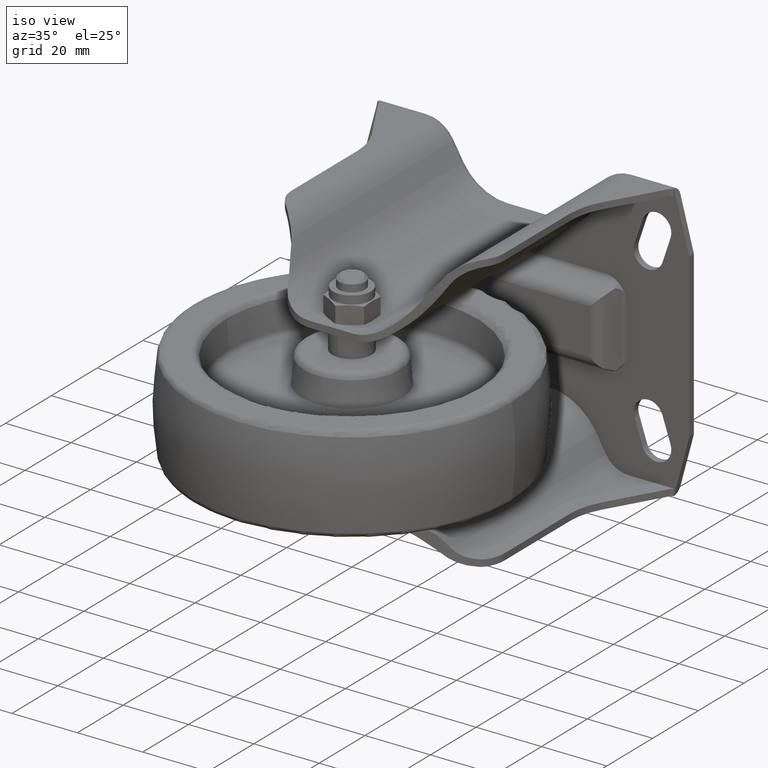
[diagram: clean part render]
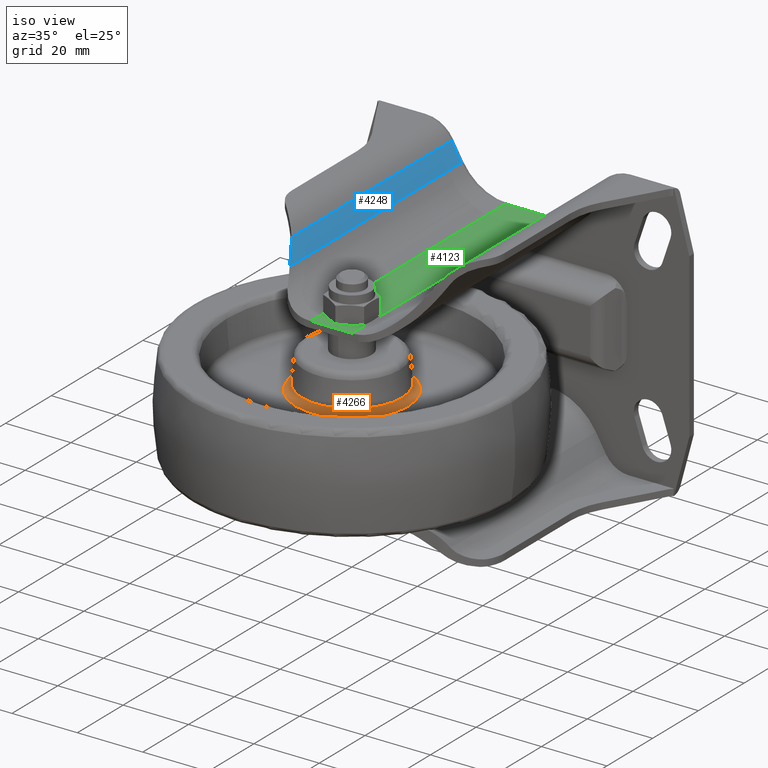
[diagram: same view with three faces highlighted in distinct colors, each labeled with its STEP entity id]
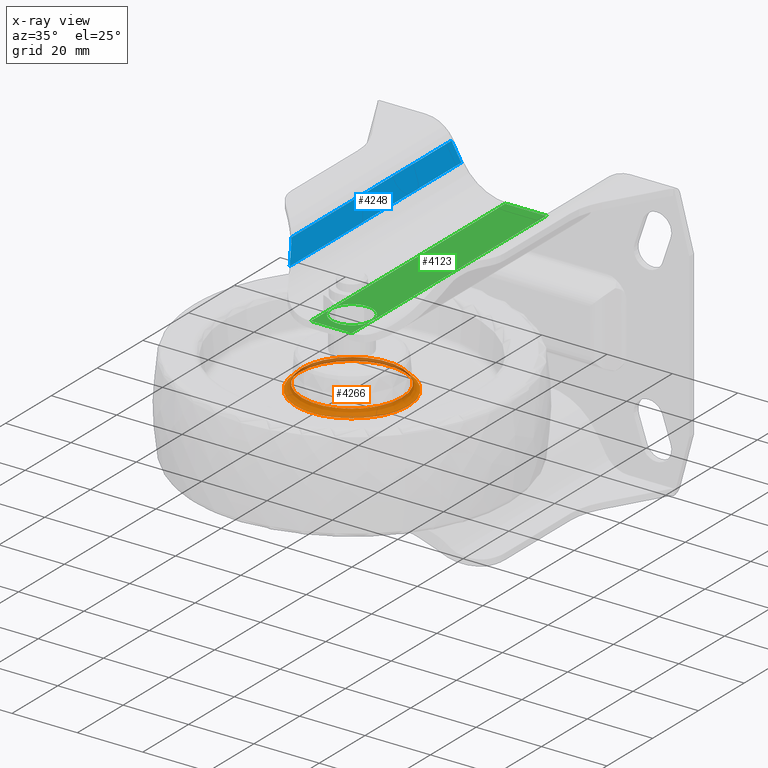
[diagram: x-ray of the same camera — body ghosted, the three highlighted faces saturated]
A machine part, iso view with three faces highlighted in distinct colors.
The next image is the same camera in x-ray (body ghosted, the three faces saturated) — at least one of them is partly hidden behind the body in this view.
Their STEP definitions:

[orange] entity #4266 — the highlighted toroidal blend (fillet) surface has major radius 17.3112 mm and minor (blend) radius 2 mm.
#65=TOROIDAL_SURFACE('',#4763,17.3111789336489,1.99999999999999);
#538=FACE_OUTER_BOUND('',#797,.T.);
#797=EDGE_LOOP('',(#3679,#3680,#3681,#3682,#3683,#3684));
#1541=CIRCLE('',#4761,17.206507021163);
#1542=CIRCLE('',#4762,17.206507021163);
#1543=CIRCLE('',#4764,1.99999999999999);
#1544=CIRCLE('',#4765,15.3187895374654);
#1545=CIRCLE('',#4766,15.3187895374654);
#1917=VERTEX_POINT('',#7499);
#1918=VERTEX_POINT('',#7501);
#1919=VERTEX_POINT('',#7505);
#1920=VERTEX_POINT('',#7507);
#2507=EDGE_CURVE('',#1917,#1918,#1541,.T.);
#2508=EDGE_CURVE('',#1918,#1917,#1542,.T.);
#2509=EDGE_CURVE('',#1918,#1919,#1543,.T.);
#2510=EDGE_CURVE('',#1919,#1920,#1544,.T.);
#2511=EDGE_CURVE('',#1920,#1919,#1545,.T.);
#3679=ORIENTED_EDGE('',*,*,#2507,.F.);
#3680=ORIENTED_EDGE('',*,*,#2508,.F.);
#3681=ORIENTED_EDGE('',*,*,#2509,.T.);
#3682=ORIENTED_EDGE('',*,*,#2510,.T.);
#3683=ORIENTED_EDGE('',*,*,#2511,.T.);
#3684=ORIENTED_EDGE('',*,*,#2509,.F.);
#4266=ADVANCED_FACE('',(#538),#65,.F.);
#4761=AXIS2_PLACEMENT_3D('',#7502,#5977,#5978);
#4762=AXIS2_PLACEMENT_3D('',#7503,#5979,#5980);
#4763=AXIS2_PLACEMENT_3D('',#7504,#5981,#5982);
#4764=AXIS2_PLACEMENT_3D('',#7506,#5983,#5984);
#4765=AXIS2_PLACEMENT_3D('',#7508,#5985,#5986);
#4766=AXIS2_PLACEMENT_3D('',#7509,#5987,#5988);
#5977=DIRECTION('center_axis',(0.,0.,-1.));
#5978=DIRECTION('ref_axis',(1.,0.,0.));
#5979=DIRECTION('center_axis',(0.,0.,-1.));
#5980=DIRECTION('ref_axis',(1.,0.,0.));
#5981=DIRECTION('center_axis',(0.,0.,-1.));
#5982=DIRECTION('ref_axis',(-1.,0.,0.));
#5983=DIRECTION('center_axis',(1.22464679914735E-16,1.,0.));
#5984=DIRECTION('ref_axis',(1.,-1.22464679914735E-16,0.));
#5985=DIRECTION('center_axis',(0.,0.,-1.));
#5986=DIRECTION('ref_axis',(1.,0.,0.));
#5987=DIRECTION('center_axis',(0.,0.,-1.));
#5988=DIRECTION('ref_axis',(1.,0.,0.));
#7499=CARTESIAN_POINT('',(-17.206507021163,-2.10711978252056E-15,3.81824517780279));
#7501=CARTESIAN_POINT('',(17.206507021163,-2.10718937479737E-15,3.81824517780279));
#7502=CARTESIAN_POINT('Origin',(0.,0.,3.81824517780279));
#7503=CARTESIAN_POINT('Origin',(0.,0.,3.81824517780279));
#7504=CARTESIAN_POINT('Origin',(0.,0.,5.81550424731193));
#7505=CARTESIAN_POINT('',(15.3187895374654,-1.8760106573869E-15,5.64119276181662));
#7506=CARTESIAN_POINT('Origin',(17.3111789336489,-2.12000798705602E-15,
5.81550424731193));
#7507=CARTESIAN_POINT('',(-15.3187895374654,1.87594870004479E-15,5.64119276181662));
#7508=CARTESIAN_POINT('Origin',(0.,0.,5.64119276181662));
#7509=CARTESIAN_POINT('Origin',(0.,0.,5.64119276181662));

[blue] entity #4248 — the highlighted planar face has unit normal (0.866, 0, 0.5).
#100=ELLIPSE('',#4614,19.9999999999995,9.99999999999976);
#300=PLANE('',#4716);
#520=FACE_OUTER_BOUND('',#779,.T.);
#779=EDGE_LOOP('',(#3581,#3582,#3583,#3584,#3585));
#860=LINE('',#6532,#1126);
#956=LINE('',#7072,#1222);
#1067=LINE('',#7425,#1333);
#1068=LINE('',#7427,#1334);
#1126=VECTOR('',#5149,10.);
#1222=VECTOR('',#5547,6.92465327496404);
#1333=VECTOR('',#5878,71.8951631842363);
#1334=VECTOR('',#5881,77.0849364905389);
#1674=VERTEX_POINT('',#6518);
#1678=VERTEX_POINT('',#6530);
#1804=VERTEX_POINT('',#7069);
#1805=VERTEX_POINT('',#7071);
#1816=VERTEX_POINT('',#7097);
#2112=EDGE_CURVE('',#1678,#1674,#860,.T.);
#2310=EDGE_CURVE('',#1805,#1804,#956,.T.);
#2322=EDGE_CURVE('',#1816,#1805,#100,.T.);
#2471=EDGE_CURVE('',#1678,#1816,#1067,.T.);
#2472=EDGE_CURVE('',#1674,#1804,#1068,.T.);
#3581=ORIENTED_EDGE('',*,*,#2112,.F.);
#3582=ORIENTED_EDGE('',*,*,#2471,.T.);
#3583=ORIENTED_EDGE('',*,*,#2322,.T.);
#3584=ORIENTED_EDGE('',*,*,#2310,.T.);
#3585=ORIENTED_EDGE('',*,*,#2472,.F.);
#4248=ADVANCED_FACE('',(#520),#300,.T.);
#4614=AXIS2_PLACEMENT_3D('',#7098,#5570,#5571);
#4716=AXIS2_PLACEMENT_3D('',#7426,#5879,#5880);
#5149=DIRECTION('',(0.5,0.,-0.866025403784439));
#5547=DIRECTION('',(0.377964473009228,-0.654653670707975,-0.654653670707979));
#5570=DIRECTION('center_axis',(-0.866025403784439,0.,-0.5));
#5571=DIRECTION('ref_axis',(0.5,0.,-0.866025403784439));
#5878=DIRECTION('',(0.,-1.,0.));
#5879=DIRECTION('center_axis',(0.866025403784439,0.,0.5));
#5880=DIRECTION('ref_axis',(0.5,0.,-0.866025403784439));
#5881=DIRECTION('',(0.,-1.,0.));
#6518=CARTESIAN_POINT('',(-19.7244645862196,76.,32.25));
#6530=CARTESIAN_POINT('',(-22.7555534994651,76.,37.5));
#6532=CARTESIAN_POINT('',(-11.7921211515529,76.,18.5107781480718));
#7069=CARTESIAN_POINT('',(-19.7244645862196,0.915063509461078,32.25));
#7071=CARTESIAN_POINT('',(-22.341737512063,5.44831319429635,36.7832496848352));
#7072=CARTESIAN_POINT('',(-22.341737512063,5.44831319429634,36.7832496848352));
#7097=CARTESIAN_POINT('',(-22.7555534994651,6.10483681576369,37.5));
#7098=CARTESIAN_POINT('Origin',(-31.0019915499072,0.448313194296499,51.7832496848349));
#7425=CARTESIAN_POINT('',(-22.7555534994651,78.,37.5));
#7426=CARTESIAN_POINT('Origin',(-22.7555534994651,78.,37.5));
#7427=CARTESIAN_POINT('',(-19.7244645862196,78.,32.25));

[green] entity #4123 — the highlighted planar face has unit normal (0, 0, 1).
#200=FACE_BOUND('',#642,.T.);
#246=PLANE('',#4481);
#395=FACE_OUTER_BOUND('',#641,.T.);
#641=EDGE_LOOP('',(#2887,#2888,#2889,#2890));
#642=EDGE_LOOP('',(#2891,#2892,#2893,#2894,#2895,#2896));
#858=LINE('',#6512,#1124);
#878=LINE('',#6606,#1144);
#879=LINE('',#6621,#1145);
#880=LINE('',#6622,#1146);
#1124=VECTOR('',#5125,10.);
#1144=VECTOR('',#5215,87.);
#1145=VECTOR('',#5222,87.);
#1146=VECTOR('',#5223,12.6021416551216);
#1363=CIRCLE('',#4332,6.2583333333335);
#1364=CIRCLE('',#4334,6.2583333333335);
#1373=CIRCLE('',#4359,6.2583333333335);
#1374=CIRCLE('',#4361,6.2583333333335);
#1375=CIRCLE('',#4363,6.2583333333335);
#1376=CIRCLE('',#4365,6.2583333333335);
#1586=VERTEX_POINT('',#6122);
#1587=VERTEX_POINT('',#6126);
#1588=VERTEX_POINT('',#6132);
#1589=VERTEX_POINT('',#6133);
#1602=VERTEX_POINT('',#6180);
#1609=VERTEX_POINT('',#6220);
#1670=VERTEX_POINT('',#6509);
#1671=VERTEX_POINT('',#6511);
#1702=VERTEX_POINT('',#6605);
#1705=VERTEX_POINT('',#6620);
#1964=EDGE_CURVE('',#1587,#1586,#1363,.T.);
#1966=EDGE_CURVE('',#1588,#1589,#1364,.T.);
#2004=EDGE_CURVE('',#1586,#1602,#1373,.T.);
#2005=EDGE_CURVE('',#1602,#1588,#1374,.T.);
#2006=EDGE_CURVE('',#1589,#1609,#1375,.T.);
#2007=EDGE_CURVE('',#1609,#1587,#1376,.T.);
#2102=EDGE_CURVE('',#1670,#1671,#858,.T.);
#2146=EDGE_CURVE('',#1671,#1702,#878,.T.);
#2150=EDGE_CURVE('',#1670,#1705,#879,.T.);
#2151=EDGE_CURVE('',#1705,#1702,#880,.T.);
#2887=ORIENTED_EDGE('',*,*,#2102,.F.);
#2888=ORIENTED_EDGE('',*,*,#2150,.T.);
#2889=ORIENTED_EDGE('',*,*,#2151,.T.);
#2890=ORIENTED_EDGE('',*,*,#2146,.F.);
#2891=ORIENTED_EDGE('',*,*,#1966,.T.);
#2892=ORIENTED_EDGE('',*,*,#2006,.T.);
#2893=ORIENTED_EDGE('',*,*,#2007,.T.);
#2894=ORIENTED_EDGE('',*,*,#1964,.T.);
#2895=ORIENTED_EDGE('',*,*,#2004,.T.);
#2896=ORIENTED_EDGE('',*,*,#2005,.T.);
#4123=ADVANCED_FACE('',(#395,#200),#246,.T.);
#4332=AXIS2_PLACEMENT_3D('',#6127,#4861,#4862);
#4334=AXIS2_PLACEMENT_3D('',#6134,#4865,#4866);
#4359=AXIS2_PLACEMENT_3D('',#6253,#4922,#4923);
#4361=AXIS2_PLACEMENT_3D('',#6255,#4926,#4927);
#4363=AXIS2_PLACEMENT_3D('',#6257,#4930,#4931);
#4365=AXIS2_PLACEMENT_3D('',#6259,#4934,#4935);
#4481=AXIS2_PLACEMENT_3D('',#6619,#5220,#5221);
#4861=DIRECTION('center_axis',(0.,0.,-1.));
#4862=DIRECTION('ref_axis',(0.,1.,0.));
#4865=DIRECTION('center_axis',(0.,0.,-1.));
#4866=DIRECTION('ref_axis',(0.,1.,0.));
#4922=DIRECTION('center_axis',(0.,0.,-1.));
#4923=DIRECTION('ref_axis',(0.,1.,0.));
#4926=DIRECTION('center_axis',(0.,0.,-1.));
#4927=DIRECTION('ref_axis',(0.,1.,0.));
#4930=DIRECTION('center_axis',(0.,0.,-1.));
#4931=DIRECTION('ref_axis',(0.,1.,0.));
#4934=DIRECTION('center_axis',(0.,0.,-1.));
#4935=DIRECTION('ref_axis',(0.,1.,0.));
#5125=DIRECTION('',(1.,0.,0.));
#5215=DIRECTION('',(0.,-1.,0.));
#5220=DIRECTION('center_axis',(0.,0.,1.));
#5221=DIRECTION('ref_axis',(1.,0.,0.));
#5222=DIRECTION('',(0.,-1.,0.));
#5223=DIRECTION('',(1.,0.,0.));
#6122=CARTESIAN_POINT('',(3.12916666666667,5.41987565201761,24.5));
#6126=CARTESIAN_POINT('',(-3.12916666666667,5.41987565201761,24.5));
#6127=CARTESIAN_POINT('Origin',(0.,0.,24.5));
#6132=CARTESIAN_POINT('',(3.12916666666667,-5.41987565201761,24.5));
#6133=CARTESIAN_POINT('',(-3.12916666666667,-5.41987565201761,24.5));
#6134=CARTESIAN_POINT('Origin',(0.,0.,24.5));
#6180=CARTESIAN_POINT('',(6.25833333333333,0.,24.5));
#6220=CARTESIAN_POINT('',(-6.25833333333333,0.,24.5));
#6253=CARTESIAN_POINT('Origin',(0.,0.,24.5));
#6255=CARTESIAN_POINT('Origin',(0.,0.,24.5));
#6257=CARTESIAN_POINT('Origin',(0.,0.,24.5));
#6259=CARTESIAN_POINT('Origin',(0.,0.,24.5));
#6509=CARTESIAN_POINT('',(-6.3010708275608,76.,24.5));
#6511=CARTESIAN_POINT('',(6.3010708275608,76.,24.5));
#6512=CARTESIAN_POINT('',(-3.1505354137804,76.,24.5));
#6605=CARTESIAN_POINT('',(6.3010708275608,-8.99999999999999,24.5));
#6606=CARTESIAN_POINT('',(6.3010708275608,78.,24.5));
#6619=CARTESIAN_POINT('Origin',(-6.3010708275608,78.,24.5));
#6620=CARTESIAN_POINT('',(-6.3010708275608,-8.99999999999999,24.5));
#6621=CARTESIAN_POINT('',(-6.3010708275608,78.,24.5));
#6622=CARTESIAN_POINT('',(-6.3010708275608,-8.99999999999999,24.5));